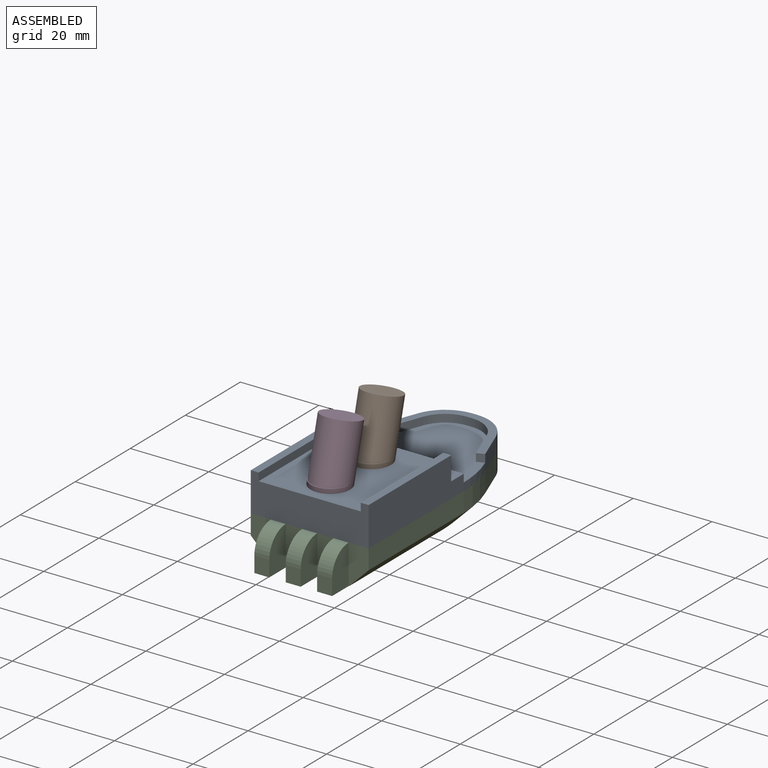
[diagram: assembled view]
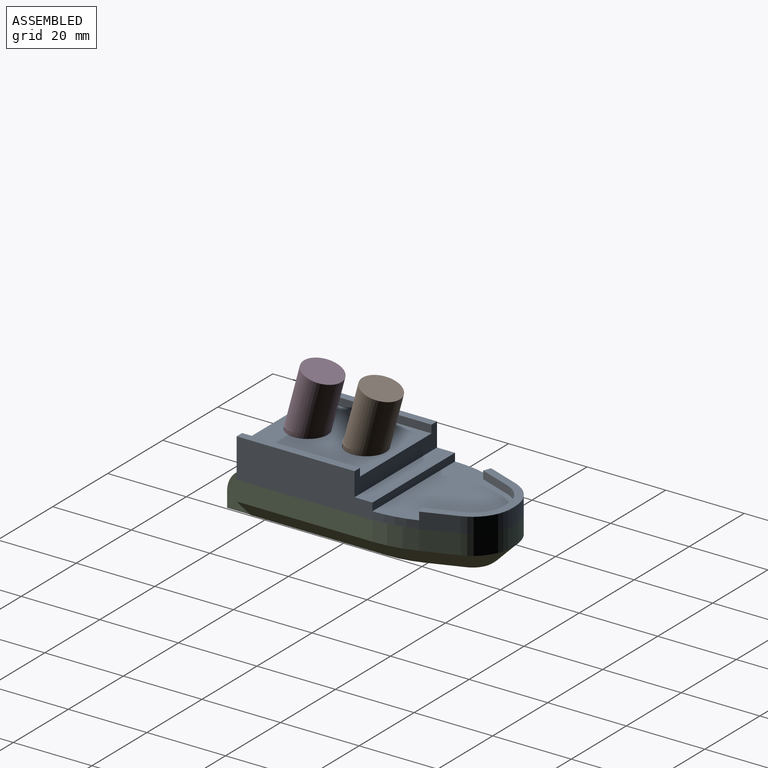
[diagram: assembled view, second angle]
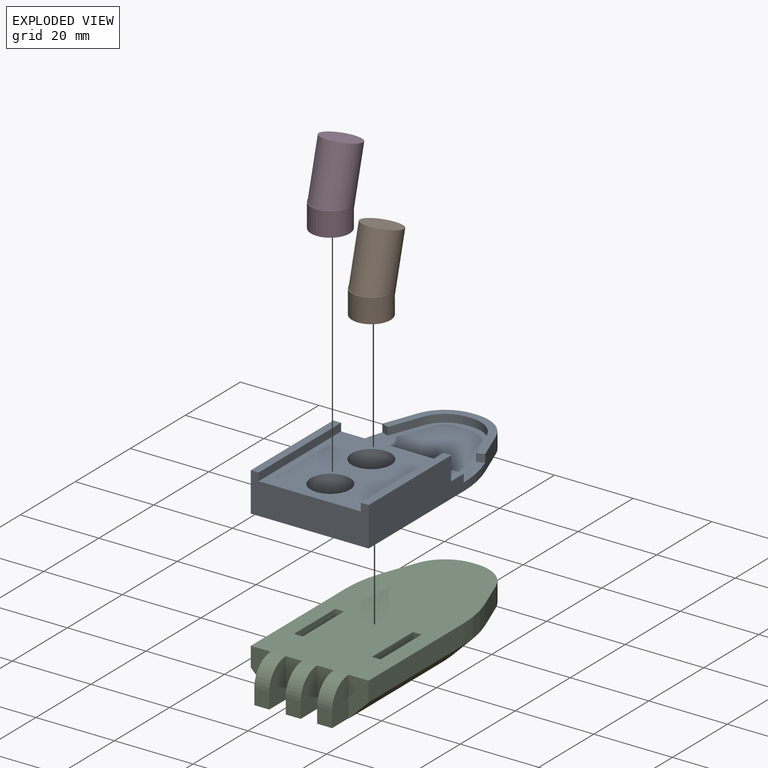
[diagram: exploded view]
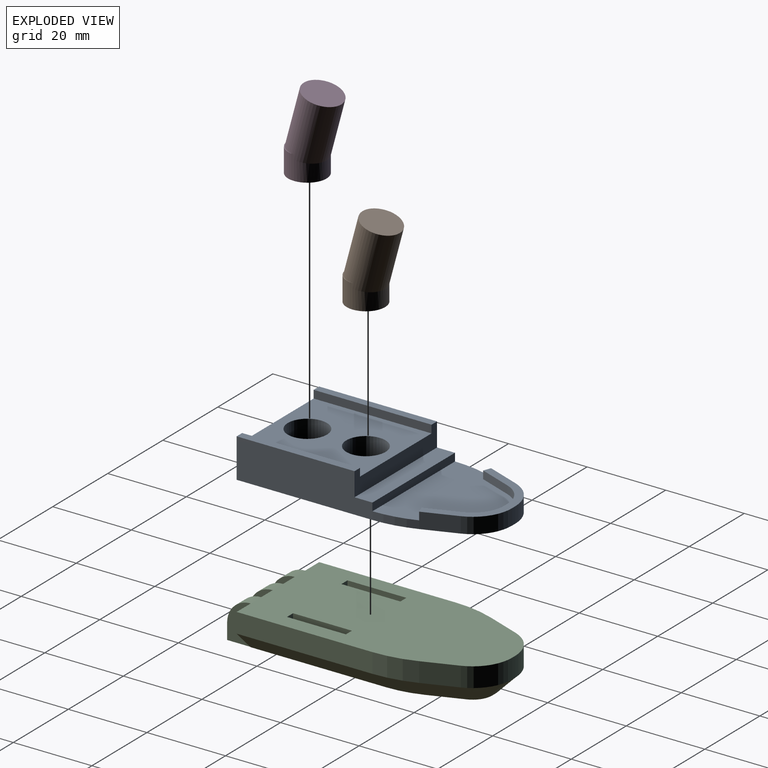
[diagram: exploded view, second angle]
ASSEMBLY  parts=4 mates=3
PART A: 42 faces, bbox 30x60x10 mm
  f0: plane 60x30mm, normal (0,0,-1), area 1563.1mm2, adj f3,f4,f5,f7,f8,f9,f10,f11
  f1: plane 30x26mm, normal (0,0,1), area 622.9mm2, adj f5,f23,f24,f26,f28,f30
  f2: plane 30x4.56mm, normal (0,0,1), area 136.8mm2, adj f3,f4,f22,f23
  f3: plane 34.56x10mm, normal (1,0,0), area 318.2mm2, adj f0,f2,f5,f11,f22,f23,f29
  f4: plane 34.56x10mm, normal (-1,0,0), area 318.2mm2, adj f0,f2,f5,f10,f22,f23,f31
  f5: plane 30x10mm, normal (0,-1,0), area 248mm2, adj f0,f1,f3,f4,f28,f29,f30,f31
  f6: plane 30x23.44mm, normal (0,0,1), area 510.4mm2, adj f10,f11,f14,f15,f16,f17,f18,f20
  f7: plane 8.42x4mm, normal (0.94,0.35,0), area 36mm2, adj f0,f11,f13,f19,f20
  f8: plane 4x1.14mm, normal (0,1,0), area 4.6mm2, adj f0,f12,f13,f19
  f9: plane 8.42x4mm, normal (-0.94,0.35,0), area 36mm2, adj f0,f10,f12,f19,f21
  f10: cylinder r=30mm len=10.53mm, axis (0,0,1), area 21.5mm2, adj f0,f4,f6,f9
  f11: cylinder r=30mm len=10.53mm, axis (0,0,1), area 21.5mm2, adj f0,f3,f6,f7
  f12: cylinder r=10mm len=9.36mm, axis (0,0,-1), area 48.5mm2, adj f0,f8,f9,f19
  f13: cylinder r=10mm len=9.36mm, axis (0,0,1), area 48.5mm2, adj f0,f7,f8,f19
  f14: plane 8.42x3.16mm, normal (0.94,-0.35,0), area 18mm2, adj f6,f15,f19,f21
  f15: cylinder r=8mm len=7.49mm, axis (0,0,-1), area 19.4mm2, adj f6,f14,f16,f19
  f16: plane 2x1.14mm, normal (0,-1,0), area 2.3mm2, adj f6,f15,f17,f19
  f17: cylinder r=8mm len=7.49mm, axis (0,0,-1), area 19.4mm2, adj f6,f16,f18,f19
  f18: plane 8.42x3.16mm, normal (-0.94,-0.35,0), area 18mm2, adj f6,f17,f19,f20
  f19: plane 26.18x15.61mm, normal (0,0,1), area 81.9mm2, adj f7,f8,f9,f12,f13,f14,f15,f16
  f20: plane 2x1.87mm, normal (0.35,-0.94,0), area 4mm2, adj f6,f7,f18,f19
  f21: plane 2x1.87mm, normal (-0.35,-0.94,0), area 4mm2, adj f6,f9,f14,f19
  f22: plane 30x2mm, normal (0,1,0), area 60mm2, adj f2,f3,f4,f6
  f23: plane 30x6mm, normal (0,1,0), area 128mm2, adj f1,f2,f3,f4,f28,f29,f30,f31
  f24: cylinder r=5mm len=10mm, axis (0,0,1), area 157.1mm2, adj f1,f25
  f25: plane 10x10mm, normal (0,0,1), area 78.5mm2, adj f24
  f26: cylinder r=5mm len=10mm, axis (0,0,1), area 157.1mm2, adj f1,f27
  f27: plane 10x10mm, normal (0,0,1), area 78.5mm2, adj f26
  f28: plane 30x2mm, normal (-1,0,0), area 60mm2, adj f1,f5,f23,f29
  f29: plane 30x2mm, normal (0,0,1), area 60mm2, adj f3,f5,f23,f28
  f30: plane 30x2mm, normal (1,0,0), area 60mm2, adj f1,f5,f23,f31
  f31: plane 30x2mm, normal (0,0,1), area 60mm2, adj f4,f5,f23,f30
  f32: plane 5x2.2mm, normal (0,1,0), area 11mm2, adj f0,f33,f35,f36
  f33: plane 15x5mm, normal (1,0,0), area 75mm2, adj f0,f32,f34,f36
  f34: plane 5x2.2mm, normal (0,-1,0), area 11mm2, adj f0,f33,f35,f36
  f35: plane 15x5mm, normal (-1,0,0), area 75mm2, adj f0,f32,f34,f36
  f36: plane 15x2.2mm, normal (0,0,-1), area 33mm2, adj f32,f33,f34,f35
  f37: plane 5x2.2mm, normal (0,1,0), area 11mm2, adj f0,f38,f40,f41
  f38: plane 15x5mm, normal (1,0,0), area 75mm2, adj f0,f37,f39,f41
  f39: plane 5x2.2mm, normal (0,-1,0), area 11mm2, adj f0,f38,f40,f41
  f40: plane 15x5mm, normal (-1,0,0), area 75mm2, adj f0,f37,f39,f41
  f41: plane 15x2.2mm, normal (0,0,-1), area 33mm2, adj f37,f38,f39,f40
PART B: 7 faces, bbox 9.8x13.5x20.6 mm
  f0: cylinder r=4.9mm len=17.03mm, axis (0,0.26,0.97), area 448.1mm2, adj f1,f3,f4,f5,f6
  f1: cylinder r=4.9mm len=9.8mm, axis (0,0,-1), area 161.5mm2, adj f0,f2,f4,f5,f6
  f2: plane 9.8x9.8mm, normal (0,0,1), area 75.4mm2, adj f1
  f3: plane 9.8x9.47mm, normal (0,-0.26,-0.97), area 75.4mm2, adj f0
  f4: plane 1.3x0.01mm, normal (0,-1,0), area 0mm2, adj f0,f1,f6
  f5: plane 1.3x0.01mm, normal (0,-1,0), area 0mm2, adj f0,f1,f6
  f6: plane 9.8x4.9mm, normal (0,0,-1), area 2.1mm2, adj f0,f1,f4,f5
PART C: 46 faces, bbox 30x66x10 mm
  f0: plane 60x30mm, normal (0,0,-1), area 1563.1mm2, adj f5,f6,f7,f8,f9,f10,f11,f12
  f1: plane 61x20mm, normal (0,0,1), area 1066.7mm2, adj f2,f3,f4,f5,f6,f7,f13,f18
  f2: plane 4x3.8mm, normal (0,-1,0), area 15.2mm2, adj f1,f27,f34,f35
  f3: plane 4x3.8mm, normal (0,-1,0), area 15.2mm2, adj f1,f28,f32,f33
  f4: plane 4x3.8mm, normal (0,-1,0), area 15.2mm2, adj f1,f29,f30,f31
  f5: plane 10x4.2mm, normal (0,-1,0), area 42mm2, adj f0,f1,f31,f32
  f6: plane 10x4.2mm, normal (0,-1,0), area 42mm2, adj f0,f1,f33,f34
  f7: plane 10x5.1mm, normal (0,-1,0), area 38.5mm2, adj f0,f1,f12,f26,f30
  f8: plane 34.56x5mm, normal (1,0,0), area 172.8mm2, adj f0,f13,f15,f18
  f9: plane 8.42x5mm, normal (0.94,0.35,0), area 44.9mm2, adj f0,f15,f17,f20
  f10: plane 5x1.14mm, normal (0,1,0), area 5.7mm2, adj f0,f16,f17,f22
  f11: plane 8.42x5mm, normal (-0.94,0.35,0), area 44.9mm2, adj f0,f14,f16,f24
  f12: plane 34.56x5mm, normal (-1,0,0), area 172.8mm2, adj f0,f7,f14,f26
  f13: plane 10x5.1mm, normal (0,-1,0), area 38.5mm2, adj f0,f1,f8,f18,f35
  f14: cylinder r=30mm len=10.53mm, axis (0,0,1), area 53.8mm2, adj f0,f11,f12,f25
  f15: cylinder r=30mm len=10.53mm, axis (0,0,1), area 53.8mm2, adj f0,f8,f9,f19
  f16: cylinder r=10mm len=9.36mm, axis (0,0,-1), area 60.6mm2, adj f0,f10,f11,f23
  f17: cylinder r=10mm len=9.36mm, axis (0,0,1), area 60.6mm2, adj f0,f9,f10,f21
  f18: plane 34.56x5mm, normal (0.71,0,0.71), area 244.4mm2, adj f1,f8,f13,f19
  f19: cone r=25mm half-angle=45deg, axis (0,0,-1), area 69.8mm2, adj f1,f15,f18,f20
  f20: plane 10.17x7.84mm, normal (0.66,0.25,0.71), area 63.6mm2, adj f1,f9,f19,f21
  f21: cone r=5mm half-angle=45deg, axis (0,0,-1), area 64.3mm2, adj f1,f17,f20,f22
  f22: plane 5x5mm, normal (0,0.71,0.71), area 8.1mm2, adj f1,f10,f21,f23
  f23: cone r=5mm half-angle=45deg, axis (0,0,-1), area 64.3mm2, adj f1,f16,f22,f24
  f24: plane 10.17x7.84mm, normal (-0.66,0.25,0.71), area 63.6mm2, adj f1,f11,f23,f25
  f25: cone r=25mm half-angle=45deg, axis (0,0,-1), area 69.8mm2, adj f1,f14,f24,f26
  f26: plane 34.56x5mm, normal (-0.71,0,0.71), area 244.4mm2, adj f1,f7,f12,f25
  f27: cylinder r=6mm len=6mm, axis (-1,0,0), area 35.8mm2, adj f0,f2,f34,f35
  f28: cylinder r=6mm len=6mm, axis (-1,0,0), area 35.8mm2, adj f0,f3,f32,f33
  f29: cylinder r=6mm len=6mm, axis (-1,0,0), area 35.8mm2, adj f0,f4,f30,f31
  f30: plane 10x6mm, normal (-1,0,0), area 52.3mm2, adj f1,f4,f7,f29
  f31: plane 10x6mm, normal (1,0,0), area 52.3mm2, adj f1,f4,f5,f29
  f32: plane 10x6mm, normal (-1,0,0), area 52.3mm2, adj f1,f3,f5,f28
  f33: plane 10x6mm, normal (1,0,0), area 52.3mm2, adj f1,f3,f6,f28
  f34: plane 10x6mm, normal (-1,0,0), area 52.3mm2, adj f1,f2,f6,f27
  f35: plane 10x6mm, normal (1,0,0), area 52.3mm2, adj f1,f2,f13,f27
  f36: plane 15x5mm, normal (-1,0,0), area 75mm2, adj f0,f37,f39,f40
  f37: plane 5x2.2mm, normal (0,1,0), area 11mm2, adj f0,f36,f38,f40
  f38: plane 15x5mm, normal (1,0,0), area 75mm2, adj f0,f37,f39,f40
  f39: plane 5x2.2mm, normal (0,-1,0), area 11mm2, adj f0,f36,f38,f40
  f40: plane 15x2.2mm, normal (0,0,-1), area 33mm2, adj f36,f37,f38,f39
  f41: plane 15x5mm, normal (-1,0,0), area 75mm2, adj f0,f42,f44,f45
  f42: plane 5x2.2mm, normal (0,1,0), area 11mm2, adj f0,f41,f43,f45
  f43: plane 15x5mm, normal (1,0,0), area 75mm2, adj f0,f42,f44,f45
  f44: plane 5x2.2mm, normal (0,-1,0), area 11mm2, adj f0,f41,f43,f45
  f45: plane 15x2.2mm, normal (0,0,-1), area 33mm2, adj f41,f42,f43,f44
PART D: same geometry as B
PLACE A t=(-29.79,-25.01,16.28)mm
PLACE B rot(axis=(1,0,0),180deg) t=(-14.79,-2.61,24.08)mm
PLACE C rot(axis=(0,1,0),180deg) t=(0.21,-25.01,16.28)mm
PLACE D rot(axis=(1,0,0),180deg) t=(-14.79,-17.51,24.08)mm
MATE fastened D.f1 <-> A.f26  axis (0,0,-1) through (-14.79,-17.51,19.28)mm
MATE fastened B.f1 <-> A.f24  axis (0,0,-1) through (-14.79,-2.61,19.28)mm
MATE fastened A.f0 <-> C.f0  axis (0,0,-1) through (-15.36,34.99,16.28)mm
